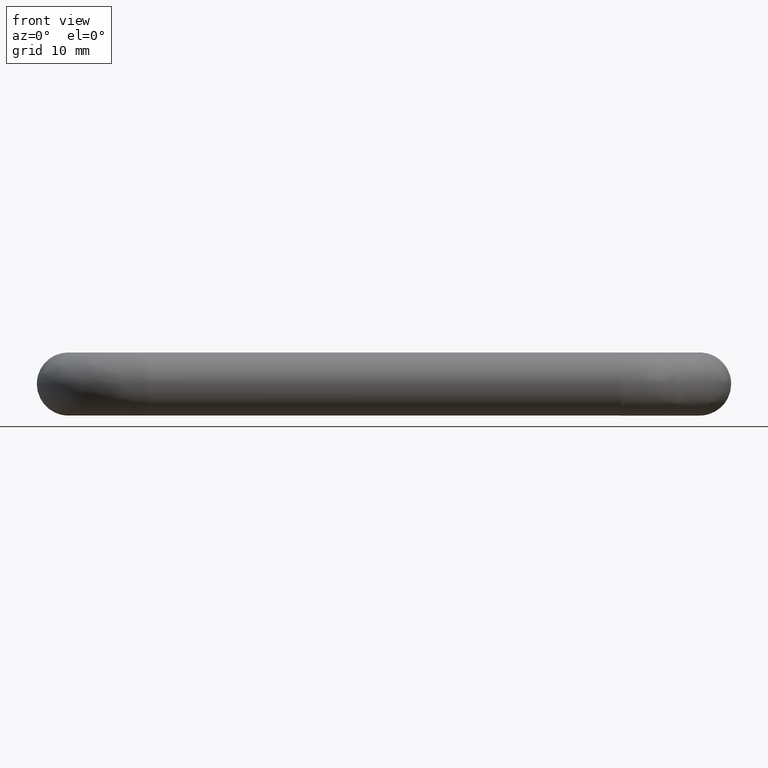
[diagram: clean part render]
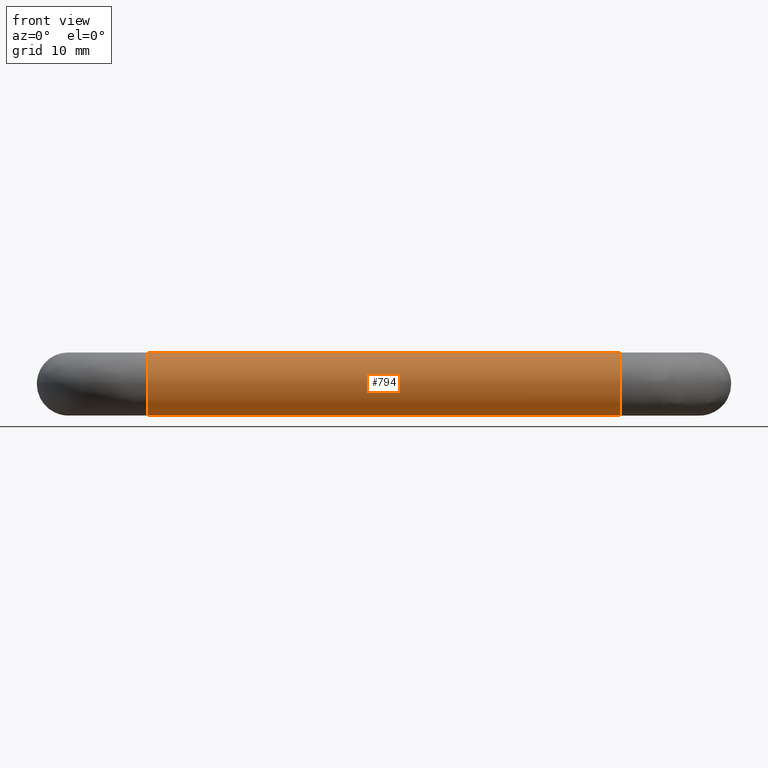
[diagram: same view with one face highlighted and labeled with its STEP entity id]
A machine part, front view. The second image highlights one B-rep face of the part: STEP entity #794.
In plain terms, the highlighted face is a freeform B-spline surface patch.
Its self-contained STEP definition (entity closure, byte-faithful):
#624=CARTESIAN_POINT('',(10.624999999436806,-25.521972536820858,2.224245948408881));
#625=CARTESIAN_POINT('',(10.624999999436806,-25.856101220587441,2.896940181352409));
#626=CARTESIAN_POINT('',(10.624999999436810,-26.373128144938558,3.441772878468769));
#627=CARTESIAN_POINT('',(10.624999999436808,-29.814901023407330,7.068644733530205));
#628=CARTESIAN_POINT('',(10.624999999436810,-33.441772878468768,3.626871855061437));
#629=CARTESIAN_POINT('',(10.624999999436808,-37.068644733530199,0.185098976592668));
#630=CARTESIAN_POINT('',(10.624999999436810,-33.626871855061438,-3.441772878468769));
#631=CARTESIAN_POINT('',(10.624999999436808,-30.185098976592677,-7.068644733530205));
#632=CARTESIAN_POINT('',(10.624999999436810,-26.558227121531232,-3.626871855061437));
#633=CARTESIAN_POINT('',(89.421875000305562,-25.521972536820837,2.224245948408881));
#634=CARTESIAN_POINT('',(89.421875000305576,-25.856101220587430,2.896940181352409));
#635=CARTESIAN_POINT('',(89.421875000305576,-26.373128144938551,3.441772878468769));
#636=CARTESIAN_POINT('',(89.421875000305590,-29.814901023407316,7.068644733530205));
#637=CARTESIAN_POINT('',(89.421875000305576,-33.441772878468761,3.626871855061437));
#638=CARTESIAN_POINT('',(89.421875000305590,-37.068644733530199,0.185098976592668));
#639=CARTESIAN_POINT('',(89.421875000305576,-33.626871855061417,-3.441772878468769));
#640=CARTESIAN_POINT('',(89.421875000305590,-30.185098976592666,-7.068644733530205));
#641=CARTESIAN_POINT('',(89.421875000305576,-26.558227121531221,-3.626871855061437));
#649=(BOUNDED_SURFACE()B_SPLINE_SURFACE(2,1,((#624,#633),(#625,#634),(#626,#635),(#627,#636),(#628,#637),(#629,#638),(#630,#639),(#631,#640),(#632,#641)),.UNSPECIFIED.,.F.,.F.,.U.)B_SPLINE_SURFACE_WITH_KNOTS((3,2,2,2,3),(2,2),(0.0,1.656854249492382,9.941125496954289,18.225396744416201,26.509667991878100),(0.0,78.796875000868781),.UNSPECIFIED.)GEOMETRIC_REPRESENTATION_ITEM()RATIONAL_B_SPLINE_SURFACE(((0.906274169979695,0.906274169979695),(0.941421356237309,0.941421356237309),(1.0,1.0),(0.707106781186548,0.707106781186548),(1.0,1.0),(0.707106781186548,0.707106781186548),(1.0,1.0),(0.707106781186548,0.707106781186548),(1.0,1.0)))REPRESENTATION_ITEM('')SURFACE());
#650=CARTESIAN_POINT('',(87.500000000000000,-25.521972536825938,2.224245948419135));
#651=VERTEX_POINT('',#650);
#652=CARTESIAN_POINT('',(87.500000000261423,-30.348666258785439,4.987828369138665));
#653=VERTEX_POINT('',#652);
#654=CARTESIAN_POINT('',(87.500000000000000,-25.521972536825942,2.224245948419136));
#655=CARTESIAN_POINT('',(87.500000000000000,-26.900695591529157,4.999999999999999));
#656=CARTESIAN_POINT('',(87.500000000000000,-30.0,5.0));
#657=CARTESIAN_POINT('',(87.500000000000000,-30.174545580285226,5.0));
#658=CARTESIAN_POINT('',(87.500000000261423,-30.348666258785432,4.987828369138665));
#666=(BOUNDED_CURVE()B_SPLINE_CURVE(2,(#654,#655,#656,#657,#658),.UNSPECIFIED.,.F.,.U.)B_SPLINE_CURVE_WITH_KNOTS((3,2,3),(0.575619190623108,0.750000000000000,0.762166313527505),.UNSPECIFIED.)CURVE()GEOMETRIC_REPRESENTATION_ITEM()RATIONAL_B_SPLINE_CURVE((0.876408099967899,0.795700173769228,1.0,0.985746277079341,0.972879876254578))REPRESENTATION_ITEM(''));
#667=EDGE_CURVE('',#651,#653,#666,.T.);
#668=ORIENTED_EDGE('',*,*,#667,.F.);
#669=CARTESIAN_POINT('',(12.499999999942640,-25.521972536863931,2.224245948398652));
#670=VERTEX_POINT('',#669);
#671=CARTESIAN_POINT('',(12.499999999942640,-25.521972536863931,2.224245948398652));
#672=CARTESIAN_POINT('',(87.500000000000000,-25.521972536825938,2.224245948419135));
#673=QUASI_UNIFORM_CURVE('',1,(#671,#672),.UNSPECIFIED.,.F.,.U.);
#674=EDGE_CURVE('',#670,#651,#673,.T.);
#675=ORIENTED_EDGE('',*,*,#674,.F.);
#676=CARTESIAN_POINT('',(12.499999999457479,-29.937169799666218,4.999605221007558));
#677=VERTEX_POINT('',#676);
#678=CARTESIAN_POINT('',(12.499999999942641,-25.521972536863924,2.224245948398652));
#679=CARTESIAN_POINT('',(12.499999999793262,-26.881425326389223,4.961203580930071));
#680=CARTESIAN_POINT('',(12.499999999457488,-29.937169799666226,4.999605221007558));
#688=(BOUNDED_CURVE()B_SPLINE_CURVE(2,(#678,#679,#680),.UNSPECIFIED.,.F.,.U.)B_SPLINE_CURVE_WITH_KNOTS((3,3),(0.575619190621648,0.747784295857223),.UNSPECIFIED.)CURVE()GEOMETRIC_REPRESENTATION_ITEM()RATIONAL_B_SPLINE_CURVE((0.876408099969250,0.796725658665069,0.994854295495546))REPRESENTATION_ITEM(''));
#689=EDGE_CURVE('',#670,#677,#688,.T.);
#690=ORIENTED_EDGE('',*,*,#689,.T.);
#691=CARTESIAN_POINT('',(12.500000000000000,-34.999999999999993,0.0));
#692=VERTEX_POINT('',#691);
#693=CARTESIAN_POINT('',(12.499999999457483,-29.937169799666226,4.999605221007558));
#694=CARTESIAN_POINT('',(12.500000000000005,-29.968583659123556,5.0));
#695=CARTESIAN_POINT('',(12.500000000000000,-30.0,5.0));
#696=CARTESIAN_POINT('',(12.500000000000000,-34.999999999999993,5.000000000000001));
#697=CARTESIAN_POINT('',(12.500000000000000,-34.999999999999993,0.0));
#705=(BOUNDED_CURVE()B_SPLINE_CURVE(2,(#693,#694,#695,#696,#697),.UNSPECIFIED.,.F.,.U.)B_SPLINE_CURVE_WITH_KNOTS((3,2,3),(0.747784295857223,0.750000000000000,1.0),.UNSPECIFIED.)CURVE()GEOMETRIC_REPRESENTATION_ITEM()RATIONAL_B_SPLINE_CURVE((0.994854295495546,0.997404141126735,1.0,0.707106781186548,1.0))REPRESENTATION_ITEM(''));
#706=EDGE_CURVE('',#677,#692,#705,.T.);
#707=ORIENTED_EDGE('',*,*,#706,.T.);
#708=CARTESIAN_POINT('',(12.499999999596270,-30.348666259178511,-4.987828369111188));
#709=VERTEX_POINT('',#708);
#710=CARTESIAN_POINT('',(12.500000000000000,-34.999999999999993,0.0));
#711=CARTESIAN_POINT('',(12.499999999999998,-34.999999999999993,-4.662684233893985));
#712=CARTESIAN_POINT('',(12.499999999596271,-30.348666259178515,-4.987828369111187));
#720=(BOUNDED_CURVE()B_SPLINE_CURVE(2,(#710,#711,#712),.UNSPECIFIED.,.F.,.U.)B_SPLINE_CURVE_WITH_KNOTS((3,3),(0.0,0.237833686445387),.UNSPECIFIED.)CURVE()GEOMETRIC_REPRESENTATION_ITEM()RATIONAL_B_SPLINE_CURVE((1.0,0.721360504138965,0.972879876197243))REPRESENTATION_ITEM(''));
#721=EDGE_CURVE('',#692,#709,#720,.T.);
#722=ORIENTED_EDGE('',*,*,#721,.T.);
#723=CARTESIAN_POINT('',(12.500000000000000,-26.558228211156390,-3.626872889076486));
#724=VERTEX_POINT('',#723);
#725=CARTESIAN_POINT('',(12.499999999596273,-30.348666259178515,-4.987828369111188));
#726=CARTESIAN_POINT('',(12.499999999999995,-30.174545580679755,-5.000000000000001));
#727=CARTESIAN_POINT('',(12.500000000000000,-30.0,-5.0));
#728=CARTESIAN_POINT('',(12.500000000000002,-28.005203140756990,-5.000000000000001));
#729=CARTESIAN_POINT('',(12.499999999999996,-26.558228211156390,-3.626872889076486));
#737=(BOUNDED_CURVE()B_SPLINE_CURVE(2,(#725,#726,#727,#728,#729),.UNSPECIFIED.,.F.,.U.)B_SPLINE_CURVE_WITH_KNOTS((3,2,3),(0.237833686445387,0.250000000000000,0.371049481319765),.UNSPECIFIED.)CURVE()GEOMETRIC_REPRESENTATION_ITEM()RATIONAL_B_SPLINE_CURVE((0.972879876197243,0.985746277047583,1.0,0.858181711122221,0.853699664726935))REPRESENTATION_ITEM(''));
#738=EDGE_CURVE('',#709,#724,#737,.T.);
#739=ORIENTED_EDGE('',*,*,#738,.T.);
#740=CARTESIAN_POINT('',(87.500000000089756,-26.558227491804399,-3.626872206390019));
#741=VERTEX_POINT('',#740);
#742=CARTESIAN_POINT('',(12.500000000000000,-26.558228211156390,-3.626872889076486));
#743=CARTESIAN_POINT('',(87.500000000089756,-26.558227491804399,-3.626872206390019));
#744=QUASI_UNIFORM_CURVE('',1,(#742,#743),.UNSPECIFIED.,.F.,.U.);
#745=EDGE_CURVE('',#724,#741,#744,.T.);
#746=ORIENTED_EDGE('',*,*,#745,.T.);
#747=CARTESIAN_POINT('',(87.500000000284388,-29.937169800261760,-4.999605221015042));
#748=VERTEX_POINT('',#747);
#749=CARTESIAN_POINT('',(87.500000000284388,-29.937169800261767,-4.999605221015042));
#750=CARTESIAN_POINT('',(87.500000000171596,-27.978853070194326,-4.974994991508750));
#751=CARTESIAN_POINT('',(87.500000000089756,-26.558227491804399,-3.626872206390019));
#759=(BOUNDED_CURVE()B_SPLINE_CURVE(2,(#749,#750,#751),.UNSPECIFIED.,.F.,.U.)B_SPLINE_CURVE_WITH_KNOTS((3,3),(0.252215704100880,0.371049495849149),.UNSPECIFIED.)CURVE()GEOMETRIC_REPRESENTATION_ITEM()RATIONAL_B_SPLINE_CURVE((0.994854295591978,0.858099654491509,0.853699663650991))REPRESENTATION_ITEM(''));
#760=EDGE_CURVE('',#748,#741,#759,.T.);
#761=ORIENTED_EDGE('',*,*,#760,.F.);
#762=CARTESIAN_POINT('',(87.500000000000000,-34.999999999999993,0.0));
#763=VERTEX_POINT('',#762);
#764=CARTESIAN_POINT('',(87.500000000000000,-34.999999999999993,0.0));
#765=CARTESIAN_POINT('',(87.500000000000000,-34.999999999999993,-5.000000000000001));
#766=CARTESIAN_POINT('',(87.500000000000000,-30.0,-5.0));
#767=CARTESIAN_POINT('',(87.500000000000000,-29.968583659719169,-5.0));
#768=CARTESIAN_POINT('',(87.500000000284388,-29.937169800261767,-4.999605221015042));
#776=(BOUNDED_CURVE()B_SPLINE_CURVE(2,(#764,#765,#766,#767,#768),.UNSPECIFIED.,.F.,.U.)B_SPLINE_CURVE_WITH_KNOTS((3,2,3),(0.0,0.250000000000000,0.252215704100880),.UNSPECIFIED.)CURVE()GEOMETRIC_REPRESENTATION_ITEM()RATIONAL_B_SPLINE_CURVE((1.0,0.707106781186548,1.0,0.997404141175821,0.994854295591978))REPRESENTATION_ITEM(''));
#777=EDGE_CURVE('',#763,#748,#776,.T.);
#778=ORIENTED_EDGE('',*,*,#777,.F.);
#779=CARTESIAN_POINT('',(87.500000000261423,-30.348666258785439,4.987828369138666));
#780=CARTESIAN_POINT('',(87.500000000000000,-34.999999999999986,4.662684234630683));
#781=CARTESIAN_POINT('',(87.500000000000000,-34.999999999999993,0.0));
#789=(BOUNDED_CURVE()B_SPLINE_CURVE(2,(#779,#780,#781),.UNSPECIFIED.,.F.,.U.)B_SPLINE_CURVE_WITH_KNOTS((3,3),(0.762166313527506,1.0),.UNSPECIFIED.)CURVE()GEOMETRIC_REPRESENTATION_ITEM()RATIONAL_B_SPLINE_CURVE((0.972879876254577,0.721360504107207,1.0))REPRESENTATION_ITEM(''));
#790=EDGE_CURVE('',#653,#763,#789,.T.);
#791=ORIENTED_EDGE('',*,*,#790,.F.);
#792=EDGE_LOOP('',(#668,#675,#690,#707,#722,#739,#746,#761,#778,#791));
#793=FACE_OUTER_BOUND('',#792,.T.);
#794=ADVANCED_FACE('',(#793),#649,.T.);